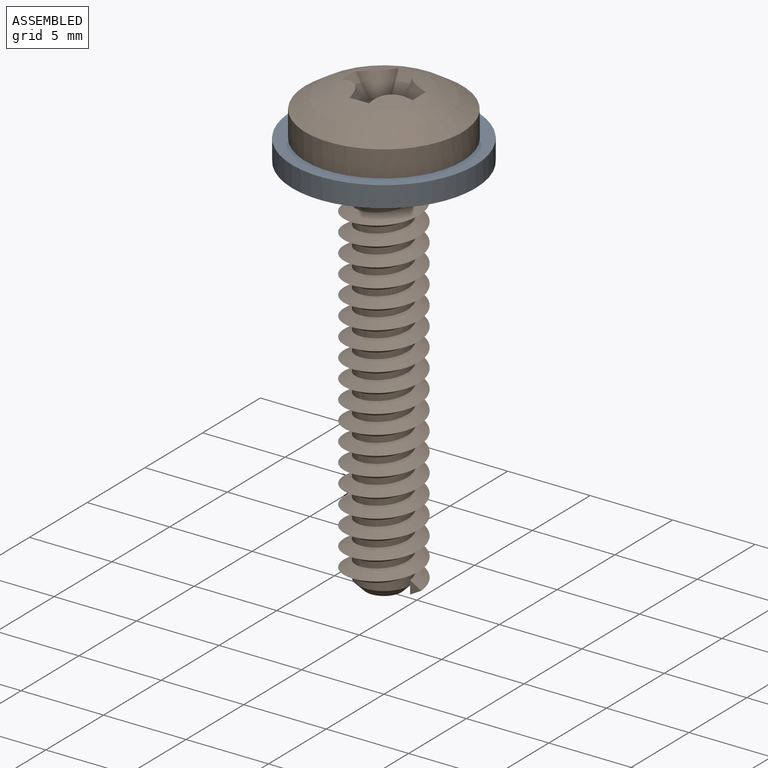
[diagram: assembled view]
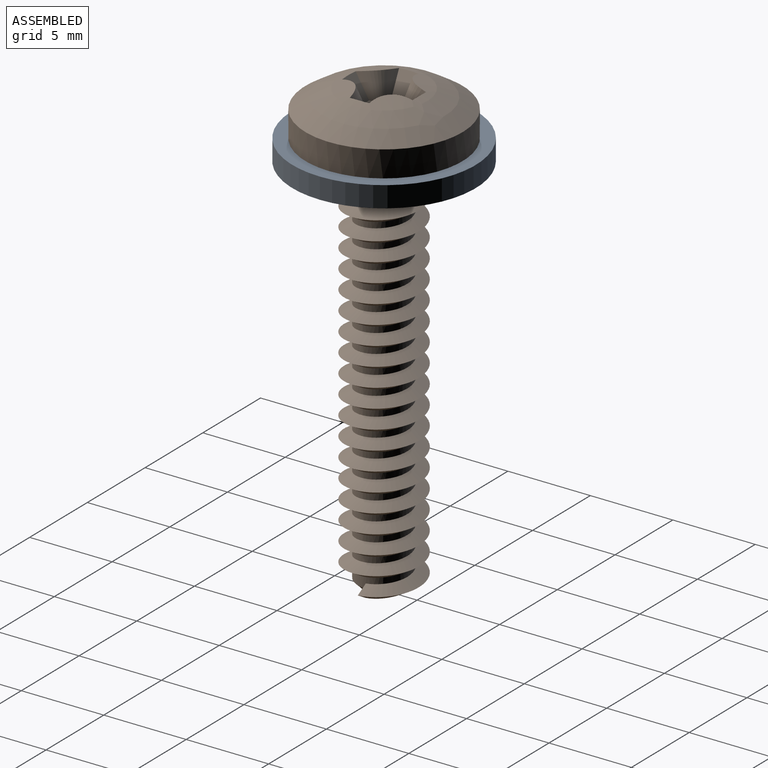
[diagram: assembled view, second angle]
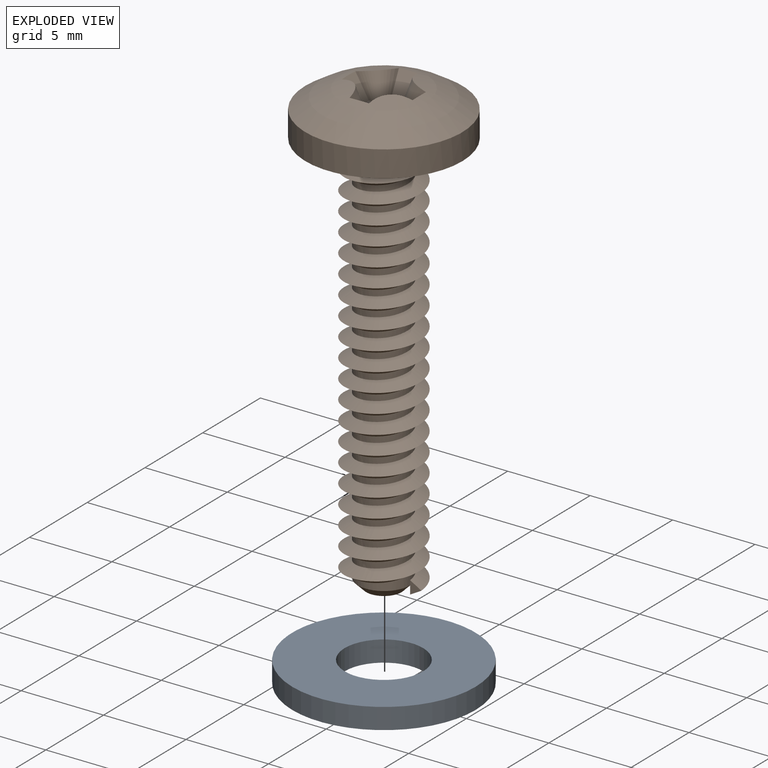
[diagram: exploded view]
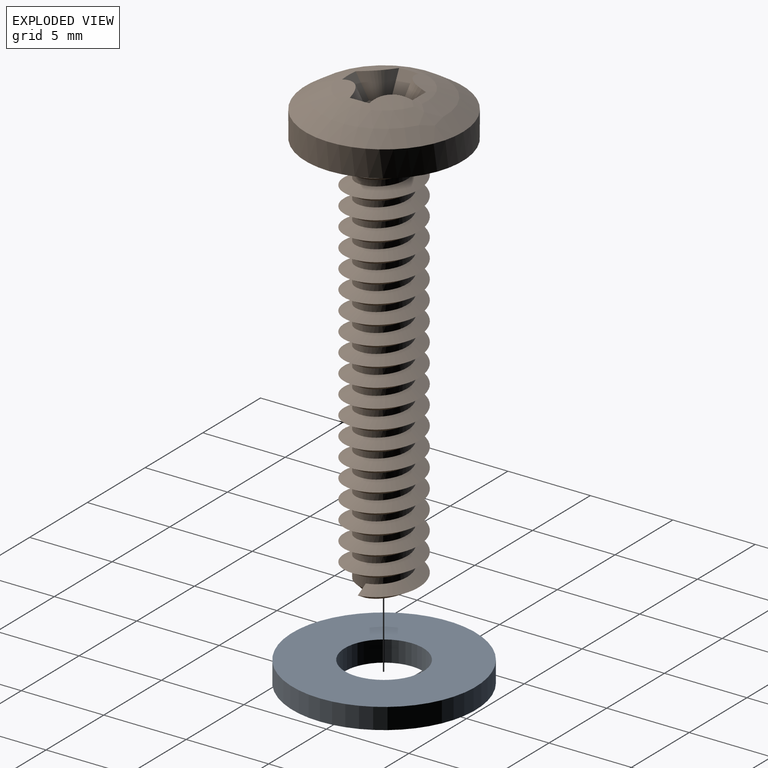
[diagram: exploded view, second angle]
ASSEMBLY  parts=2 mates=2
PART A: 4 faces, bbox 11.1x11.1x1.3 mm
  f0: cylinder r=2.38mm len=4.76mm, axis (0,0,-1), area 19mm2, adj f2,f3
  f1: cylinder r=5.56mm len=11.11mm, axis (0,0,-1), area 44.3mm2, adj f2,f3
  f2: plane 11.11x11.11mm, normal (0,0,1), area 79.2mm2, adj f0,f1
  f3: plane 11.11x11.11mm, normal (0,0,-1), area 79.2mm2, adj f0,f1
PART B: 21 faces, bbox 9.7x9.7x27.9 mm
  f0: cylinder r=1.59mm len=23.59mm, axis (0,0,1), area 90.5mm2, adj f1,f6,f8,f10,f11
  f1: torus R=2.1mm, axis (0,0,-1), area 6.1mm2, adj f0,f4,f7,f8
  f2: cylinder r=4.76mm len=9.53mm, axis (0,0,-1), area 47.5mm2, adj f3,f4
  f3: sphere r=7.94mm, area 68.1mm2, adj f2,f13,f14,f15,f16,f17,f18,f19
  f4: plane 9.53x9.53mm, normal (0,0,-1), area 57.5mm2, adj f1,f2
  f5: plane 2.16x2.16mm, normal (0,0,-1), area 3.7mm2, adj f6
  f6: cone r=1.08mm half-angle=45deg, axis (0,0,1), area 6mm2, adj f0,f5,f9
  f7: plane 0.69x0.51mm, normal (0,1,0), area 0.1mm2, adj f1,f8,f11
  f8: bspline ~24.5x5.25mm, area 199.7mm2, adj f0,f1,f7,f10,f11
  f9: cylinder r=1.59mm len=3.07mm, axis (0,0,1), area 1.1mm2, adj f6,f10,f11
  f10: plane 0.79x0.69mm, normal (0,-1,0), area 0.3mm2, adj f0,f8,f9,f11
  f11: bspline ~24.5x5.25mm, area 203mm2, adj f0,f7,f8,f9,f10
  f12: plane 2.38x2.38mm, normal (0,0,1), area 3.6mm2, adj f13,f14,f15,f16,f17,f18,f19,f20
  f13: plane 1.43x1.31mm, normal (0,-0.8,0.6), area 1.6mm2, adj f3,f12,f14,f20
  f14: bspline ~1.98x1.98mm, area 2.5mm2, adj f3,f12,f13,f15
  f15: plane 1.29x1.17mm, normal (-0.8,0,0.6), area 1.6mm2, adj f3,f12,f14,f16
  f16: bspline ~1.98x1.98mm, area 2.5mm2, adj f3,f12,f15,f17
  f17: plane 1.43x1.31mm, normal (0,0.8,0.6), area 1.6mm2, adj f3,f12,f16,f18
  f18: bspline ~1.98x1.98mm, area 2.5mm2, adj f3,f12,f17,f19
  f19: plane 1.43x1.31mm, normal (0.8,0,0.6), area 1.6mm2, adj f3,f12,f18,f20
  f20: bspline ~1.98x1.98mm, area 2.5mm2, adj f3,f12,f13,f19
PLACE A t=(0,0,-2.22)mm
PLACE B at identity
MATE fastened A.f1 <-> B.f2  axis (0,0,1) through (0,0,-1.59)mm
MATE slider A.f1 <-> B.f0  axis (0,0,1) through (0,0,-1.59)mm
